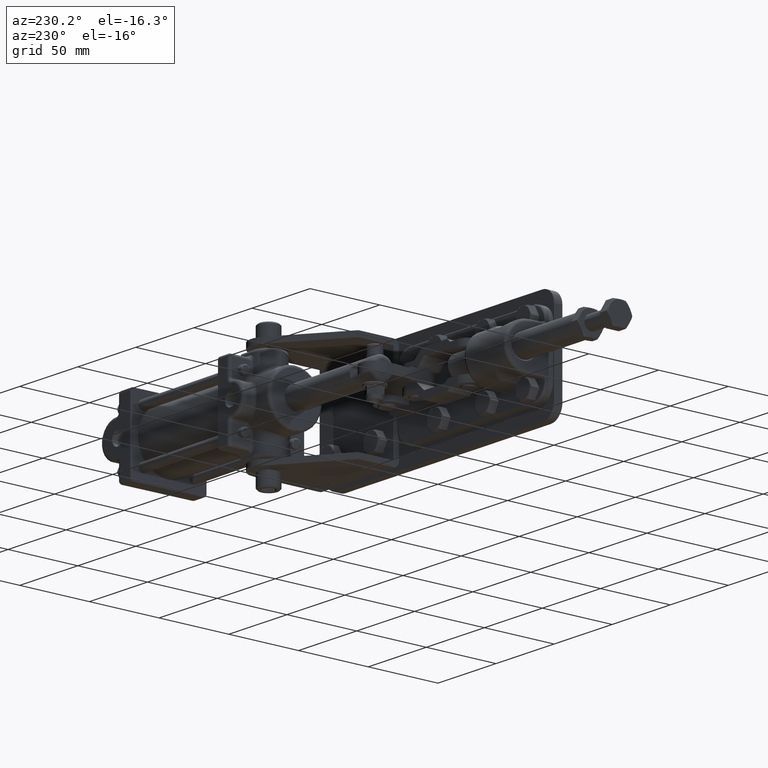
[diagram: clean part render]
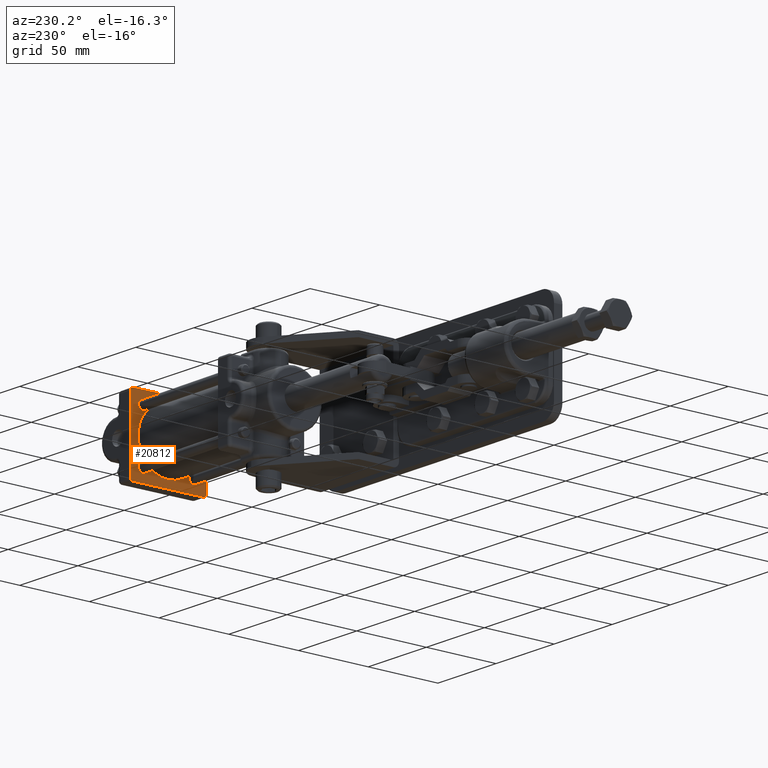
[diagram: same view with one face highlighted and labeled with its STEP entity id]
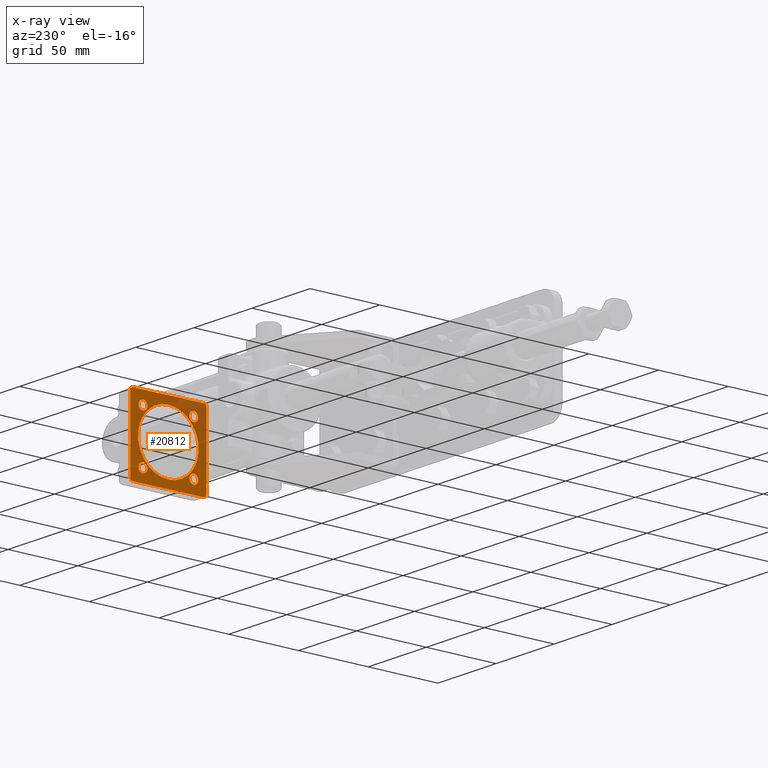
[diagram: x-ray of the same camera — body ghosted, the highlighted face saturated]
A machine part, auxiliary view. The second image highlights one B-rep face of the part: STEP entity #20812.
The next image is the same camera in x-ray: the body ghosted, the highlighted face saturated — about 28% of this face is hidden behind the body in this view.
In plain terms, the highlighted planar face has unit normal (0.9999, -0.0153, 0).
Its self-contained STEP definition (entity closure, byte-faithful):
#31 = DIRECTION ( 'NONE',  ( -9.753883574400869400E-017, -2.868221294443162300E-016, 1.000000000000000000 ) ) ;
#129 = CIRCLE ( 'NONE', #5334, 3.174999999999993600 ) ;
#232 = ORIENTED_EDGE ( 'NONE', *, *, #17431, .F. ) ;
#244 = VECTOR ( 'NONE', #23837, 1000.000000000000200 ) ;
#578 = CARTESIAN_POINT ( 'NONE',  ( 272.7658934566707100, 67.64728363114089400, 18.00000000000002500 ) ) ;
#1681 = CIRCLE ( 'NONE', #25378, 2.000000000000001800 ) ;
#2313 = VERTEX_POINT ( 'NONE', #18363 ) ;
#2428 = CARTESIAN_POINT ( 'NONE',  ( 272.4896351264483200, 49.64940371891281500, 21.50000000000002500 ) ) ;
#2776 = AXIS2_PLACEMENT_3D ( 'NONE', #28842, #12884, #31508 ) ;
#3164 = DIRECTION ( 'NONE',  ( -0.9998822173460041300, 0.01534768501235420100, -9.312529166378306600E-017 ) ) ;
#3281 = CARTESIAN_POINT ( 'NONE',  ( 272.1059430011394500, 24.65234828526272200, -26.99999999999998900 ) ) ;
#3285 = DIRECTION ( 'NONE',  ( 0.01534768501236290000, 0.9998822173460038000, 0.0000000000000000000 ) ) ;
#3356 = DIRECTION ( 'NONE',  ( 0.9998822173460041300, -0.01534768501235420100, 9.312529166378306600E-017 ) ) ;
#3384 = AXIS2_PLACEMENT_3D ( 'NONE', #19168, #3164, #21853 ) ;
#3592 = CARTESIAN_POINT ( 'NONE',  ( 272.8733272517571900, 74.64645915256292600, -24.99999999999996100 ) ) ;
#3707 = EDGE_CURVE ( 'NONE', #12052, #2313, #1681, .T. ) ;
#3882 = EDGE_CURVE ( 'NONE', #6485, #10470, #12972, .T. ) ;
#3894 = VERTEX_POINT ( 'NONE', #17933 ) ;
#3915 = CARTESIAN_POINT ( 'NONE',  ( 272.7658934566707700, 67.64728363114817000, 14.82500000000003100 ) ) ;
#4189 = DIRECTION ( 'NONE',  ( -0.9998822173460041300, 0.01534768501235420100, -9.312529166378306600E-017 ) ) ;
#4275 = CARTESIAN_POINT ( 'NONE',  ( 272.7658934566707100, 67.64728363114089400, 18.00000000000002500 ) ) ;
#4508 = AXIS2_PLACEMENT_3D ( 'NONE', #31165, #15212, #33855 ) ;
#4544 = DIRECTION ( 'NONE',  ( -0.9998822173460041300, 0.01534768501235420100, -9.312529166378306600E-017 ) ) ;
#4623 = EDGE_CURVE ( 'NONE', #10470, #6485, #24142, .T. ) ;
#5164 = CARTESIAN_POINT ( 'NONE',  ( 272.9040226217818500, 76.64622358725492300, -26.99999999999996100 ) ) ;
#5241 = AXIS2_PLACEMENT_3D ( 'NONE', #20522, #4544, #23209 ) ;
#5309 = FACE_BOUND ( 'NONE', #34659, .T. ) ;
#5334 = AXIS2_PLACEMENT_3D ( 'NONE', #25084, #9076, #27720 ) ;
#6213 = ORIENTED_EDGE ( 'NONE', *, *, #19219, .T. ) ;
#6298 = DIRECTION ( 'NONE',  ( 0.0000000000000000000, 0.0000000000000000000, -1.000000000000000000 ) ) ;
#6485 = VERTEX_POINT ( 'NONE', #9771 ) ;
#6918 = EDGE_LOOP ( 'NONE', ( #21625, #16032 ) ) ;
#6971 = VERTEX_POINT ( 'NONE', #17439 ) ;
#6978 = DIRECTION ( 'NONE',  ( 0.01534768501236290000, 0.9998822173460038000, 0.0000000000000000000 ) ) ;
#7020 = AXIS2_PLACEMENT_3D ( 'NONE', #23028, #7044, #25722 ) ;
#7044 = DIRECTION ( 'NONE',  ( -0.9998822173460041300, 0.01534768501235420100, -9.312529166378306600E-017 ) ) ;
#7194 = EDGE_LOOP ( 'NONE', ( #32362, #21364, #12981, #6213, #20781, #14474, #20905, #32825 ) ) ;
#7377 = LINE ( 'NONE', #16527, #13634 ) ;
#8088 = EDGE_CURVE ( 'NONE', #29514, #22769, #18469, .T. ) ;
#8243 = EDGE_LOOP ( 'NONE', ( #27814, #27003 ) ) ;
#8348 = DIRECTION ( 'NONE',  ( -0.9998822173460041300, 0.01534768501235420100, -9.312529166378306600E-017 ) ) ;
#8842 = AXIS2_PLACEMENT_3D ( 'NONE', #578, #19286, #3285 ) ;
#9076 = DIRECTION ( 'NONE',  ( -0.9998822173460041300, 0.01534768501235420100, -9.312529166378306600E-017 ) ) ;
#9651 = EDGE_CURVE ( 'NONE', #3894, #29697, #14643, .T. ) ;
#9771 = CARTESIAN_POINT ( 'NONE',  ( 272.7658934566706000, 67.64728363113361800, 21.17500000000001800 ) ) ;
#10137 = EDGE_CURVE ( 'NONE', #19386, #6971, #23346, .T. ) ;
#10298 = VERTEX_POINT ( 'NONE', #11202 ) ;
#10470 = VERTEX_POINT ( 'NONE', #3915 ) ;
#10713 = CARTESIAN_POINT ( 'NONE',  ( 272.2133767962244500, 31.65152380658769400, -18.00000000000255400 ) ) ;
#11121 = EDGE_CURVE ( 'NONE', #22769, #29514, #12799, .T. ) ;
#11149 = VERTEX_POINT ( 'NONE', #34331 ) ;
#11202 = CARTESIAN_POINT ( 'NONE',  ( 272.2133767962244500, 31.65152380658777500, -14.82500000000256300 ) ) ;
#11742 = AXIS2_PLACEMENT_3D ( 'NONE', #15001, #22786, #33629 ) ;
#11984 = ORIENTED_EDGE ( 'NONE', *, *, #31583, .T. ) ;
#12052 = VERTEX_POINT ( 'NONE', #25533 ) ;
#12187 = AXIS2_PLACEMENT_3D ( 'NONE', #20174, #4189, #22864 ) ;
#12388 = EDGE_CURVE ( 'NONE', #27036, #11149, #30627, .T. ) ;
#12417 = FACE_BOUND ( 'NONE', #6918, .T. ) ;
#12799 = CIRCLE ( 'NONE', #2776, 21.50000000000000000 ) ;
#12884 = DIRECTION ( 'NONE',  ( 0.9998822173460041300, -0.01534768501235428400, 9.312529166378305400E-017 ) ) ;
#12918 = CARTESIAN_POINT ( 'NONE',  ( 272.0752476311147300, 22.65258385057070000, 27.00000000000004600 ) ) ;
#12972 = CIRCLE ( 'NONE', #28242, 3.174999999999993600 ) ;
#12981 = ORIENTED_EDGE ( 'NONE', *, *, #28255, .F. ) ;
#13035 = CARTESIAN_POINT ( 'NONE',  ( 272.0752476311147300, 22.65258385057070000, 25.00000000000004300 ) ) ;
#13250 = VERTEX_POINT ( 'NONE', #21189 ) ;
#13400 = DIRECTION ( 'NONE',  ( 0.01534768501236290000, 0.9998822173460038000, 0.0000000000000000000 ) ) ;
#13634 = VECTOR ( 'NONE', #31, 1000.000000000000000 ) ;
#14474 = ORIENTED_EDGE ( 'NONE', *, *, #12388, .T. ) ;
#14643 = CIRCLE ( 'NONE', #7020, 3.174999999999993600 ) ;
#15001 = CARTESIAN_POINT ( 'NONE',  ( 272.0752476311147300, 22.65258385057070000, 27.00000000000004600 ) ) ;
#15043 = CARTESIAN_POINT ( 'NONE',  ( 272.4896351264483200, 49.64940371891281500, -21.49999999999997200 ) ) ;
#15122 = VECTOR ( 'NONE', #15606, 1000.000000000000000 ) ;
#15212 = DIRECTION ( 'NONE',  ( 0.9998822173460041300, -0.01534768501235428400, 9.312529166378305400E-017 ) ) ;
#15543 = EDGE_LOOP ( 'NONE', ( #11984, #17045 ) ) ;
#15569 = VECTOR ( 'NONE', #29172, 1000.000000000000200 ) ;
#15606 = DIRECTION ( 'NONE',  ( 9.753883574400869400E-017, 2.868221294443160800E-016, -1.000000000000000000 ) ) ;
#15924 = DIRECTION ( 'NONE',  ( -0.9998822173460041300, 0.01534768501235420100, -9.312529166378306600E-017 ) ) ;
#15953 = CARTESIAN_POINT ( 'NONE',  ( 272.7658934566691800, 67.64728363104393300, -14.82500000000256300 ) ) ;
#16032 = ORIENTED_EDGE ( 'NONE', *, *, #3882, .F. ) ;
#16109 = VERTEX_POINT ( 'NONE', #18145 ) ;
#16166 = VERTEX_POINT ( 'NONE', #13035 ) ;
#16527 = CARTESIAN_POINT ( 'NONE',  ( 272.9040226217818500, 76.64622358725490900, 27.00000000000004600 ) ) ;
#16685 = AXIS2_PLACEMENT_3D ( 'NONE', #24329, #8348, #27020 ) ;
#17045 = ORIENTED_EDGE ( 'NONE', *, *, #29243, .T. ) ;
#17431 = EDGE_CURVE ( 'NONE', #21305, #13250, #129, .T. ) ;
#17439 = CARTESIAN_POINT ( 'NONE',  ( 272.0752476311147300, 22.65258385057071800, -24.99999999999998600 ) ) ;
#17933 = CARTESIAN_POINT ( 'NONE',  ( 272.7658934566691800, 67.64728363104376300, -21.17500000000254800 ) ) ;
#18145 = CARTESIAN_POINT ( 'NONE',  ( 272.1059430011394500, 24.65234828526270400, 27.00000000000004600 ) ) ;
#18363 = CARTESIAN_POINT ( 'NONE',  ( 272.8733272517571900, 74.64645915256292600, -26.99999999999996100 ) ) ;
#18469 = CIRCLE ( 'NONE', #4508, 21.50000000000000000 ) ;
#18563 = EDGE_LOOP ( 'NONE', ( #33133, #18776 ) ) ;
#18776 = ORIENTED_EDGE ( 'NONE', *, *, #8088, .T. ) ;
#19168 = CARTESIAN_POINT ( 'NONE',  ( 272.2133767962244500, 31.65152380658767900, 17.99999999999744200 ) ) ;
#19219 = EDGE_CURVE ( 'NONE', #16166, #16109, #24215, .T. ) ;
#19286 = DIRECTION ( 'NONE',  ( -0.9998822173460041300, 0.01534768501235420100, -9.312529166378306600E-017 ) ) ;
#19355 = CARTESIAN_POINT ( 'NONE',  ( 272.2133767962244500, 31.65152380658769400, -18.00000000000255400 ) ) ;
#19386 = VERTEX_POINT ( 'NONE', #3281 ) ;
#19414 = CARTESIAN_POINT ( 'NONE',  ( 272.8733272517571900, 74.64645915256291200, 27.00000000000004600 ) ) ;
#19504 = FACE_BOUND ( 'NONE', #8243, .T. ) ;
#19614 = CIRCLE ( 'NONE', #5241, 3.174999999999993600 ) ;
#20174 = CARTESIAN_POINT ( 'NONE',  ( 272.1059430011394500, 24.65234828526272200, -24.99999999999998600 ) ) ;
#20522 = CARTESIAN_POINT ( 'NONE',  ( 272.7658934566691800, 67.64728363104384800, -18.00000000000255400 ) ) ;
#20781 = ORIENTED_EDGE ( 'NONE', *, *, #34248, .F. ) ;
#20812 = ADVANCED_FACE ( 'NONE', ( #26617, #32855, #19504, #5309, #12417, #25784 ), #28143, .F. ) ;
#20905 = ORIENTED_EDGE ( 'NONE', *, *, #25607, .F. ) ;
#20988 = EDGE_CURVE ( 'NONE', #19386, #2313, #32421, .T. ) ;
#21006 = CIRCLE ( 'NONE', #3384, 3.174999999999993600 ) ;
#21189 = CARTESIAN_POINT ( 'NONE',  ( 272.2133767962244500, 31.65152380658759800, 14.82499999999744500 ) ) ;
#21297 = AXIS2_PLACEMENT_3D ( 'NONE', #31877, #15924, #34572 ) ;
#21305 = VERTEX_POINT ( 'NONE', #30211 ) ;
#21364 = ORIENTED_EDGE ( 'NONE', *, *, #10137, .T. ) ;
#21625 = ORIENTED_EDGE ( 'NONE', *, *, #4623, .F. ) ;
#21853 = DIRECTION ( 'NONE',  ( 0.01534768501236290000, 0.9998822173460038000, -1.092739197465707500E-015 ) ) ;
#22055 = DIRECTION ( 'NONE',  ( 0.01534768501236290000, 0.9998822173460038000, 0.0000000000000000000 ) ) ;
#22208 = LINE ( 'NONE', #12918, #15122 ) ;
#22274 = DIRECTION ( 'NONE',  ( -0.9998822173460041300, 0.01534768501235420100, -9.312529166378306600E-017 ) ) ;
#22443 = EDGE_CURVE ( 'NONE', #13250, #21305, #21006, .T. ) ;
#22646 = LINE ( 'NONE', #26519, #15569 ) ;
#22769 = VERTEX_POINT ( 'NONE', #2428 ) ;
#22786 = DIRECTION ( 'NONE',  ( 0.9998822173460040200, -0.01534768501235419900, 9.312529166378304100E-017 ) ) ;
#22787 = ORIENTED_EDGE ( 'NONE', *, *, #22443, .F. ) ;
#22864 = DIRECTION ( 'NONE',  ( 0.0000000000000000000, 0.0000000000000000000, -1.000000000000000000 ) ) ;
#22961 = DIRECTION ( 'NONE',  ( -0.9998822173460041300, 0.01534768501235420100, -9.312529166378306600E-017 ) ) ;
#23028 = CARTESIAN_POINT ( 'NONE',  ( 272.7658934566691800, 67.64728363104384800, -18.00000000000255400 ) ) ;
#23209 = DIRECTION ( 'NONE',  ( 0.01534768501236290000, 0.9998822173460038000, 0.0000000000000000000 ) ) ;
#23346 = CIRCLE ( 'NONE', #12187, 2.000000000000001800 ) ;
#23686 = VERTEX_POINT ( 'NONE', #28397 ) ;
#23837 = DIRECTION ( 'NONE',  ( 0.01534768501235419700, 0.9998822173460039100, 4.810323949865658100E-016 ) ) ;
#24142 = CIRCLE ( 'NONE', #8842, 3.174999999999993600 ) ;
#24166 = EDGE_CURVE ( 'NONE', #29697, #3894, #19614, .T. ) ;
#24215 = CIRCLE ( 'NONE', #21297, 2.000000000000001800 ) ;
#24329 = CARTESIAN_POINT ( 'NONE',  ( 272.8733272517571900, 74.64645915256291200, 25.00000000000004300 ) ) ;
#25084 = CARTESIAN_POINT ( 'NONE',  ( 272.2133767962244500, 31.65152380658767900, 17.99999999999744200 ) ) ;
#25378 = AXIS2_PLACEMENT_3D ( 'NONE', #3592, #22274, #6298 ) ;
#25533 = CARTESIAN_POINT ( 'NONE',  ( 272.9040226217818500, 76.64622358725492300, -24.99999999999996100 ) ) ;
#25607 = EDGE_CURVE ( 'NONE', #12052, #11149, #7377, .T. ) ;
#25722 = DIRECTION ( 'NONE',  ( 0.01534768501236290000, 0.9998822173460038000, -1.092739197465707500E-015 ) ) ;
#25784 = FACE_OUTER_BOUND ( 'NONE', #7194, .T. ) ;
#26519 = CARTESIAN_POINT ( 'NONE',  ( 272.9040226217818500, 76.64622358725490900, 27.00000000000004600 ) ) ;
#26617 = FACE_BOUND ( 'NONE', #15543, .T. ) ;
#27003 = ORIENTED_EDGE ( 'NONE', *, *, #24166, .F. ) ;
#27020 = DIRECTION ( 'NONE',  ( 0.0000000000000000000, 0.0000000000000000000, -1.000000000000000000 ) ) ;
#27036 = VERTEX_POINT ( 'NONE', #19414 ) ;
#27720 = DIRECTION ( 'NONE',  ( 0.01534768501236290000, 0.9998822173460038000, 0.0000000000000000000 ) ) ;
#27814 = ORIENTED_EDGE ( 'NONE', *, *, #9651, .F. ) ;
#28143 = PLANE ( 'NONE',  #11742 ) ;
#28242 = AXIS2_PLACEMENT_3D ( 'NONE', #4275, #22961, #6978 ) ;
#28255 = EDGE_CURVE ( 'NONE', #16166, #6971, #22208, .T. ) ;
#28397 = CARTESIAN_POINT ( 'NONE',  ( 272.2133767962244500, 31.65152380658760800, -21.17500000000254800 ) ) ;
#28842 = CARTESIAN_POINT ( 'NONE',  ( 272.4896351264483200, 49.64940371891281500, 2.901170737813458300E-014 ) ) ;
#29060 = AXIS2_PLACEMENT_3D ( 'NONE', #19355, #3356, #22055 ) ;
#29172 = DIRECTION ( 'NONE',  ( -0.01534768501235419700, -0.9998822173460039100, 3.295974604359930200E-017 ) ) ;
#29243 = EDGE_CURVE ( 'NONE', #10298, #23686, #34179, .T. ) ;
#29342 = DIRECTION ( 'NONE',  ( 0.9998822173460041300, -0.01534768501235420100, 9.312529166378306600E-017 ) ) ;
#29514 = VERTEX_POINT ( 'NONE', #15043 ) ;
#29697 = VERTEX_POINT ( 'NONE', #15953 ) ;
#30211 = CARTESIAN_POINT ( 'NONE',  ( 272.2133767962244500, 31.65152380658776100, 21.17499999999743600 ) ) ;
#30627 = CIRCLE ( 'NONE', #16685, 2.000000000000001800 ) ;
#30799 = CIRCLE ( 'NONE', #31820, 3.174999999999993600 ) ;
#31165 = CARTESIAN_POINT ( 'NONE',  ( 272.4896351264483200, 49.64940371891281500, 2.901170737813458300E-014 ) ) ;
#31508 = DIRECTION ( 'NONE',  ( 0.0000000000000000000, 0.0000000000000000000, -1.000000000000000000 ) ) ;
#31583 = EDGE_CURVE ( 'NONE', #23686, #10298, #30799, .T. ) ;
#31820 = AXIS2_PLACEMENT_3D ( 'NONE', #10713, #29342, #13400 ) ;
#31877 = CARTESIAN_POINT ( 'NONE',  ( 272.1059430011394500, 24.65234828526270800, 25.00000000000004300 ) ) ;
#32362 = ORIENTED_EDGE ( 'NONE', *, *, #20988, .F. ) ;
#32421 = LINE ( 'NONE', #5164, #244 ) ;
#32825 = ORIENTED_EDGE ( 'NONE', *, *, #3707, .T. ) ;
#32855 = FACE_BOUND ( 'NONE', #18563, .T. ) ;
#33133 = ORIENTED_EDGE ( 'NONE', *, *, #11121, .T. ) ;
#33629 = DIRECTION ( 'NONE',  ( 9.260846731941087500E-017, -3.438512160047212100E-017, -1.000000000000000000 ) ) ;
#33855 = DIRECTION ( 'NONE',  ( 0.0000000000000000000, 0.0000000000000000000, -1.000000000000000000 ) ) ;
#34179 = CIRCLE ( 'NONE', #29060, 3.174999999999993600 ) ;
#34248 = EDGE_CURVE ( 'NONE', #27036, #16109, #22646, .T. ) ;
#34331 = CARTESIAN_POINT ( 'NONE',  ( 272.9040226217818500, 76.64622358725490900, 25.00000000000004300 ) ) ;
#34572 = DIRECTION ( 'NONE',  ( 0.0000000000000000000, 0.0000000000000000000, -1.000000000000000000 ) ) ;
#34659 = EDGE_LOOP ( 'NONE', ( #22787, #232 ) ) ;